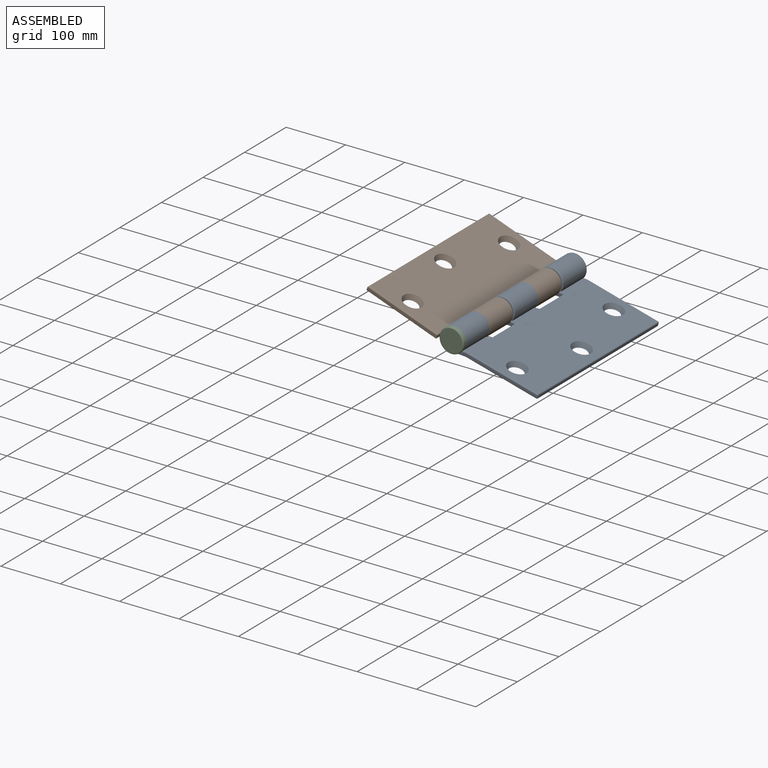
[diagram: assembled view]
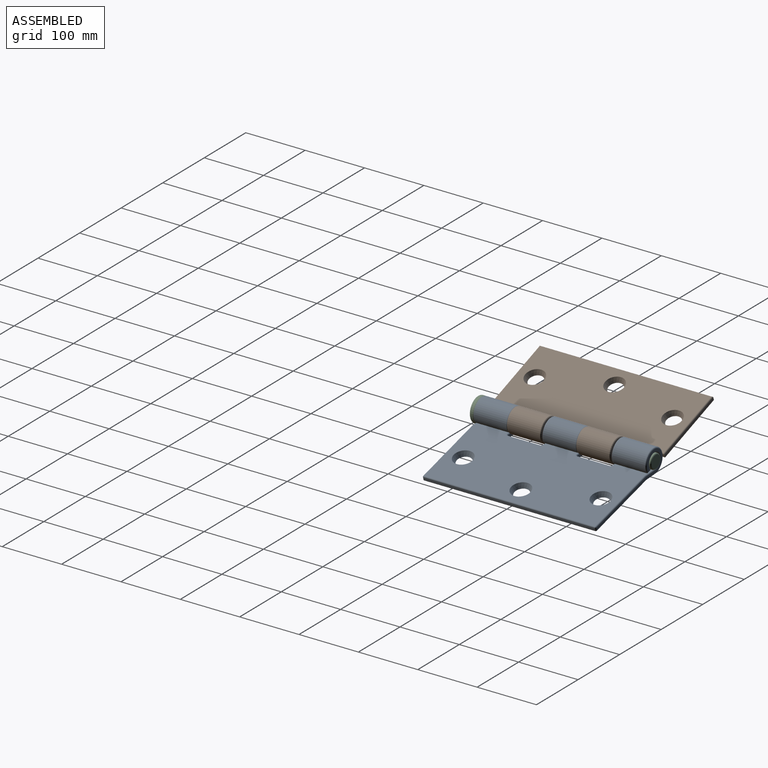
[diagram: assembled view, second angle]
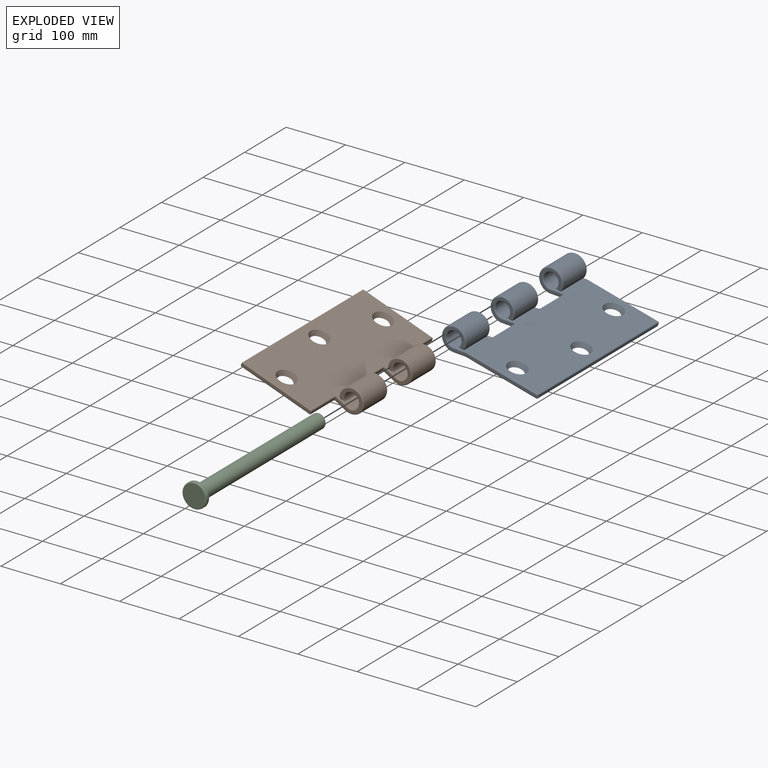
[diagram: exploded view]
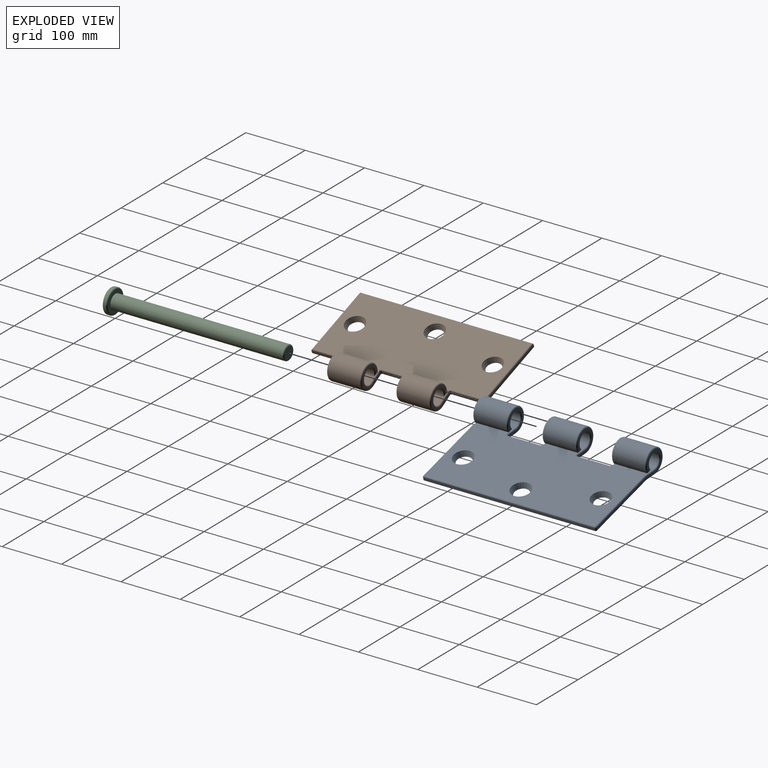
[diagram: exploded view, second angle]
ASSEMBLY  parts=3 mates=2
PART A: 95 faces, bbox 171.7x292x44.4 mm
  f0: plane 55.07x20.47mm, normal (0.2,0,-0.98), area 1136.3mm2, adj f2,f12,f46,f49,f55,f60
  f1: plane 54.74x20.47mm, normal (0.2,0,-0.98), area 1136.1mm2, adj f3,f12,f68,f71,f80
  f2: cylinder r=20.5mm len=54.4mm, axis (0,1,0), area 5922.8mm2, adj f0,f4,f42,f53
  f3: cylinder r=20.5mm len=54.4mm, axis (0,1,0), area 5922.8mm2, adj f1,f5,f64,f81
  f4: plane 54.4x9.27mm, normal (0,0,-1), area 504.3mm2, adj f2,f6,f37,f51
  f5: plane 54.4x9.27mm, normal (0,0,-1), area 504.3mm2, adj f3,f7,f59,f86
  f6: cylinder r=12.5mm len=54.4mm, axis (0,1,0), area 3806.4mm2, adj f4,f8,f36,f52
  f7: cylinder r=12.5mm len=54.4mm, axis (0,1,0), area 3806.4mm2, adj f5,f9,f58,f89
  f8: plane 55.89x22.13mm, normal (-0.19,0,0.98), area 1227.3mm2, adj f6,f10,f41,f44,f45,f54,f56,f57
  f9: plane 55.14x22.13mm, normal (-0.19,0,0.98), area 1226.7mm2, adj f7,f10,f63,f66,f67,f92
  f10: plane 288x123mm, normal (0,0,1), area 32774mm2, adj f8,f9,f17,f20,f21,f22,f35,f40
  f11: plane 288x4mm, normal (1,0,0), area 1152mm2, adj f83,f84,f90,f91
  f12: plane 288x123.04mm, normal (0,0,-1), area 33829.6mm2, adj f0,f1,f13,f20,f21,f22,f38,f43
  f13: plane 54.74x20.47mm, normal (0.2,0,-0.98), area 1136.1mm2, adj f12,f14,f33,f38,f75
  f14: cylinder r=20.5mm len=54.4mm, axis (0,1,0), area 5922.8mm2, adj f13,f15,f31,f73
  f15: plane 54.4x9.27mm, normal (0,0,-1), area 504.3mm2, adj f14,f16,f29,f74
  f16: cylinder r=12.5mm len=54.4mm, axis (0,1,0), area 3806.4mm2, adj f15,f17,f30,f76
  f17: plane 55.14x22.13mm, normal (-0.19,0,0.98), area 1226.7mm2, adj f10,f16,f32,f34,f35,f78
  f18: plane 166x37mm, normal (0,-1,0), area 925.7mm2, adj f80,f81,f85,f86,f89,f91,f92,f94
  f19: plane 166x37mm, normal (0,1,0), area 925.7mm2, adj f73,f74,f75,f76,f77,f78,f82,f83
  f20: cone r=12mm half-angle=26.6deg, axis (0,0,1), area 786.8mm2, adj f10,f12
  f21: cone r=12mm half-angle=26.6deg, axis (0,0,1), area 786.8mm2, adj f10,f12
  f22: cone r=12mm half-angle=26.6deg, axis (0,0,1), area 786.8mm2, adj f10,f12
  f23: plane 41x37mm, normal (0,1,0), area 425.8mm2, adj f58,f59,f63,f64,f68,f70
  f24: plane 54.4x4mm, normal (-1,0,0), area 217.6mm2, adj f61,f62,f69,f70
  f25: plane 41x37mm, normal (0,-1,0), area 425.8mm2, adj f51,f52,f53,f54,f55,f61
  f26: plane 41x37mm, normal (0,1,0), area 425.8mm2, adj f36,f37,f41,f42,f46,f48
  f27: plane 54.4x4mm, normal (-1,0,0), area 217.6mm2, adj f39,f40,f47,f48
  f28: plane 41x37mm, normal (0,-1,0), area 425.8mm2, adj f29,f30,f31,f32,f33,f39
  f29: cylinder r=2mm len=9.27mm, axis (-1,0,0), area 21.3mm2, adj f15,f28,f30,f31
  f30: torus R=14.5mm, axis (0,1,0), area 226.9mm2, adj f16,f28,f29,f32
  f31: torus R=18.5mm, axis (0,1,0), area 327.8mm2, adj f14,f28,f29,f33
  f32: cylinder r=2mm len=20.13mm, axis (0.98,0,0.19), area 63.2mm2, adj f17,f28,f30,f34
  f33: cylinder r=2mm len=19.26mm, axis (-0.98,0,-0.2), area 60.4mm2, adj f13,f28,f31,f38
  f34: bspline ~3.27x2.6mm, area 5.3mm2, adj f17,f32,f35,f39
  f35: torus R=4mm, axis (0,0,-1), area 8.8mm2, adj f10,f17,f34,f39,f40
  f36: torus R=14.5mm, axis (0,1,0), area 226.9mm2, adj f6,f26,f37,f41
  f37: cylinder r=2mm len=9.27mm, axis (1,0,0), area 21.3mm2, adj f4,f26,f36,f42
  f38: bspline ~2.89x2.53mm, area 3.8mm2, adj f12,f13,f33,f39,f43
  f39: cylinder r=2mm len=4.36mm, axis (0,0,-1), area 12.5mm2, adj f27,f28,f34,f35,f38,f43
  f40: cylinder r=2mm len=54.4mm, axis (0,1,0), area 170.9mm2, adj f10,f27,f35,f44
  f41: cylinder r=2mm len=20.13mm, axis (-0.98,0,-0.19), area 63.2mm2, adj f8,f26,f36,f45
  f42: torus R=18.5mm, axis (0,1,0), area 327.8mm2, adj f2,f26,f37,f46
  f43: torus R=4mm, axis (0,0,-1), area 9.1mm2, adj f12,f38,f39,f47
  f44: torus R=4mm, axis (0,0,-1), area 8.8mm2, adj f8,f10,f40,f45,f48
  f45: bspline ~2.41x2.38mm, area 5.3mm2, adj f8,f41,f44,f48
  f46: cylinder r=2mm len=19.26mm, axis (0.98,0,0.2), area 60.4mm2, adj f0,f26,f42,f49
  f47: cylinder r=2mm len=54.4mm, axis (0,-1,0), area 170.9mm2, adj f12,f27,f43,f50
  f48: cylinder r=2mm len=4.36mm, axis (0,0,1), area 12.5mm2, adj f26,f27,f44,f45,f49,f50
  f49: bspline ~2.89x2.53mm, area 3.8mm2, adj f0,f12,f46,f48,f50
  f50: torus R=4mm, axis (0,0,-1), area 9.1mm2, adj f12,f47,f48,f49
  f51: cylinder r=2mm len=9.27mm, axis (-1,0,0), area 21.3mm2, adj f4,f25,f52,f53
  f52: torus R=14.5mm, axis (0,1,0), area 226.9mm2, adj f6,f25,f51,f54
  f53: torus R=18.5mm, axis (0,1,0), area 327.8mm2, adj f2,f25,f51,f55
  f54: cylinder r=2mm len=20.13mm, axis (0.98,0,0.19), area 63.2mm2, adj f8,f25,f52,f56
  f55: cylinder r=2mm len=19.26mm, axis (-0.98,0,-0.2), area 60.4mm2, adj f0,f25,f53,f60
  f56: bspline ~2.41x2.38mm, area 5.3mm2, adj f8,f54,f57,f61
  f57: torus R=4mm, axis (0,0,-1), area 8.8mm2, adj f8,f10,f56,f61,f62
  f58: torus R=14.5mm, axis (0,1,0), area 226.9mm2, adj f7,f23,f59,f63
  f59: cylinder r=2mm len=9.27mm, axis (1,0,0), area 21.3mm2, adj f5,f23,f58,f64
  f60: bspline ~2.89x2.53mm, area 3.8mm2, adj f0,f12,f55,f61,f65
  f61: cylinder r=2mm len=4.36mm, axis (0,0,-1), area 12.5mm2, adj f24,f25,f56,f57,f60,f65
  f62: cylinder r=2mm len=54.4mm, axis (0,1,0), area 170.9mm2, adj f10,f24,f57,f66
  f63: cylinder r=2mm len=20.13mm, axis (-0.98,0,-0.19), area 63.2mm2, adj f9,f23,f58,f67
  f64: torus R=18.5mm, axis (0,1,0), area 327.8mm2, adj f3,f23,f59,f68
  f65: torus R=4mm, axis (0,0,-1), area 9.1mm2, adj f12,f60,f61,f69
  f66: torus R=4mm, axis (0,0,-1), area 8.8mm2, adj f9,f10,f62,f67,f70
  f67: bspline ~2.41x2.38mm, area 5.3mm2, adj f9,f63,f66,f70
  f68: cylinder r=2mm len=19.26mm, axis (0.98,0,0.2), area 60.4mm2, adj f1,f23,f64,f71
  f69: cylinder r=2mm len=54.4mm, axis (0,-1,0), area 170.9mm2, adj f12,f24,f65,f72
  f70: cylinder r=2mm len=4.36mm, axis (0,0,1), area 12.5mm2, adj f23,f24,f66,f67,f71,f72
  f71: bspline ~2.89x2.53mm, area 3.8mm2, adj f1,f12,f68,f70,f72
  f72: torus R=4mm, axis (0,0,-1), area 9.1mm2, adj f12,f69,f70,f71
  f73: torus R=18.5mm, axis (0,-1,0), area 327.8mm2, adj f14,f19,f74,f75
  f74: cylinder r=2mm len=9.27mm, axis (-1,0,0), area 21.3mm2, adj f15,f19,f73,f76
  f75: cylinder r=2mm len=21.06mm, axis (-0.98,0,-0.2), area 65.9mm2, adj f13,f19,f73,f77
  f76: torus R=14.5mm, axis (0,-1,0), area 226.9mm2, adj f16,f19,f74,f78
  f77: cylinder r=2mm len=123.2mm, axis (-1,0,0), area 386.7mm2, adj f12,f19,f75,f79
  f78: cylinder r=2mm len=22.51mm, axis (0.98,0,0.19), area 70.5mm2, adj f17,f19,f76,f82
  f79: sphere r=2mm, area 4mm2, adj f77,f83,f84
  f80: cylinder r=2mm len=21.06mm, axis (0.98,0,0.2), area 65.9mm2, adj f1,f18,f81,f85
  f81: torus R=18.5mm, axis (0,-1,0), area 327.8mm2, adj f3,f18,f80,f86
  f82: cylinder r=2mm len=123mm, axis (1,0,0), area 386.1mm2, adj f10,f19,f78,f87
  f83: cylinder r=2mm len=4mm, axis (0,0,-1), area 12.6mm2, adj f11,f19,f79,f87
  f84: cylinder r=2mm len=288mm, axis (0,-1,0), area 904.8mm2, adj f11,f12,f79,f88
  f85: cylinder r=2mm len=123.2mm, axis (1,0,0), area 386.7mm2, adj f12,f18,f80,f88
  f86: cylinder r=2mm len=9.27mm, axis (1,0,0), area 21.3mm2, adj f5,f18,f81,f89
  f87: sphere r=2mm, area 6.3mm2, adj f82,f83,f90
  f88: sphere r=2mm, area 6.3mm2, adj f84,f85,f91
  f89: torus R=14.5mm, axis (0,-1,0), area 226.9mm2, adj f7,f18,f86,f92
  f90: cylinder r=2mm len=288mm, axis (0,1,0), area 904.8mm2, adj f10,f11,f87,f93
  f91: cylinder r=2mm len=4mm, axis (0,0,1), area 12.6mm2, adj f11,f18,f88,f93
  f92: cylinder r=2mm len=22.51mm, axis (-0.98,0,-0.19), area 70.5mm2, adj f9,f18,f89,f94
  f93: sphere r=2mm, area 6.3mm2, adj f90,f91,f94
  f94: cylinder r=2mm len=123mm, axis (-1,0,0), area 386.1mm2, adj f10,f18,f92,f93
PART B: 77 faces, bbox 171.7x292x44.4 mm
  f0: plane 55.07x20.47mm, normal (-0.2,0,-0.98), area 1136.3mm2, adj f2,f14,f55,f56,f66,f68
  f1: plane 55.07x20.47mm, normal (-0.2,0,-0.98), area 1136.3mm2, adj f3,f14,f38,f40,f75,f76
  f2: cylinder r=20.5mm len=54.4mm, axis (0,1,0), area 5922.8mm2, adj f0,f4,f53,f64
  f3: cylinder r=20.5mm len=54.4mm, axis (0,1,0), area 5922.8mm2, adj f1,f5,f36,f73
  f4: plane 54.4x9.27mm, normal (0,0,-1), area 504.3mm2, adj f2,f6,f51,f62
  f5: plane 54.4x9.27mm, normal (0,0,-1), area 504.3mm2, adj f3,f7,f34,f71
  f6: cylinder r=12.5mm len=54.4mm, axis (0,1,0), area 3806.4mm2, adj f4,f8,f49,f60
  f7: cylinder r=12.5mm len=54.4mm, axis (0,1,0), area 3806.4mm2, adj f5,f9,f32,f69
  f8: plane 55.89x22.13mm, normal (0.19,0,0.98), area 1227.3mm2, adj f6,f12,f43,f45,f47,f57,f58,f59
  f9: plane 55.89x22.13mm, normal (0.19,0,0.98), area 1227.3mm2, adj f7,f12,f29,f30,f31,f63,f65,f67
  f10: plane 125x4mm, normal (0,-1,0), area 500mm2, adj f13,f19,f35,f46
  f11: plane 125x4mm, normal (0,1,0), area 500mm2, adj f13,f24,f39,f50
  f12: plane 288x123mm, normal (0,0,1), area 32665.2mm2, adj f8,f9,f15,f16,f17,f31,f33,f35
  f13: plane 292x4mm, normal (-1,0,0), area 1168mm2, adj f10,f11,f37,f48
  f14: plane 288x123.04mm, normal (0,0,-1), area 33720.8mm2, adj f0,f1,f15,f16,f17,f40,f42,f44
  f15: cone r=12mm half-angle=26.6deg, axis (0,0,1), area 786.8mm2, adj f12,f14
  f16: cone r=12mm half-angle=26.6deg, axis (0,0,1), area 786.8mm2, adj f12,f14
  f17: cone r=12mm half-angle=26.6deg, axis (0,0,1), area 786.8mm2, adj f12,f14
  f18: plane 41x37mm, normal (0,-1,0), area 425.8mm2, adj f25,f30,f32,f34,f36,f38
  f19: plane 56.4x4mm, normal (1,0,0), area 225.6mm2, adj f10,f25,f33,f44
  f20: plane 41x37mm, normal (0,-1,0), area 425.8mm2, adj f26,f58,f60,f62,f64,f66
  f21: plane 54.4x4mm, normal (1,0,0), area 217.6mm2, adj f26,f27,f61,f72
  f22: plane 41x37mm, normal (0,1,0), area 425.8mm2, adj f27,f67,f69,f71,f73,f75
  f23: plane 41x37mm, normal (0,1,0), area 425.8mm2, adj f28,f47,f49,f51,f53,f55
  f24: plane 56.4x4mm, normal (1,0,0), area 225.6mm2, adj f11,f28,f41,f52
  f25: cylinder r=2mm len=4.36mm, axis (0,0,-1), area 12.5mm2, adj f18,f19,f29,f31,f40,f42
  f26: cylinder r=2mm len=4.36mm, axis (0,0,-1), area 12.5mm2, adj f20,f21,f57,f59,f68,f70
  f27: cylinder r=2mm len=4.36mm, axis (0,0,1), area 12.5mm2, adj f21,f22,f63,f65,f74,f76
  f28: cylinder r=2mm len=4.36mm, axis (0,0,1), area 12.5mm2, adj f23,f24,f43,f45,f54,f56
  f29: bspline ~3.27x2.6mm, area 5.3mm2, adj f9,f25,f30,f31
  f30: cylinder r=2mm len=20.13mm, axis (0.98,0,-0.19), area 63.2mm2, adj f9,f18,f29,f32
  f31: torus R=4mm, axis (0,0,-1), area 8.8mm2, adj f9,f12,f25,f29,f33
  f32: torus R=14.5mm, axis (0,-1,0), area 226.9mm2, adj f7,f18,f30,f34
  f33: cylinder r=2mm len=56.4mm, axis (0,-1,0), area 174mm2, adj f12,f19,f31,f35
  f34: cylinder r=2mm len=9.27mm, axis (-1,0,0), area 21.3mm2, adj f5,f18,f32,f36
  f35: cylinder r=2mm len=125mm, axis (1,0,0), area 386.4mm2, adj f10,f12,f33,f37
  f36: torus R=18.5mm, axis (0,-1,0), area 327.8mm2, adj f3,f18,f34,f38
  f37: cylinder r=2mm len=292mm, axis (0,1,0), area 911.1mm2, adj f12,f13,f35,f39
  f38: cylinder r=2mm len=19.26mm, axis (-0.98,0,0.2), area 60.4mm2, adj f1,f18,f36,f40
  f39: cylinder r=2mm len=125mm, axis (-1,0,0), area 386.4mm2, adj f11,f12,f37,f41
  f40: bspline ~2.89x2.53mm, area 3.8mm2, adj f1,f14,f25,f38,f42
  f41: cylinder r=2mm len=56.4mm, axis (0,-1,0), area 174mm2, adj f12,f24,f39,f43
  f42: torus R=4mm, axis (0,0,-1), area 9.1mm2, adj f14,f25,f40,f44
  f43: torus R=4mm, axis (0,0,-1), area 8.8mm2, adj f8,f12,f28,f41,f45
  f44: cylinder r=2mm len=56.4mm, axis (0,1,0), area 174mm2, adj f14,f19,f42,f46
  f45: bspline ~2.41x2.38mm, area 5.3mm2, adj f8,f28,f43,f47
  f46: cylinder r=2mm len=125mm, axis (-1,0,0), area 386.4mm2, adj f10,f14,f44,f48
  f47: cylinder r=2mm len=20.13mm, axis (-0.98,0,0.19), area 63.2mm2, adj f8,f23,f45,f49
  f48: cylinder r=2mm len=292mm, axis (0,-1,0), area 911.1mm2, adj f13,f14,f46,f50
  f49: torus R=14.5mm, axis (0,-1,0), area 226.9mm2, adj f6,f23,f47,f51
  f50: cylinder r=2mm len=125mm, axis (1,0,0), area 386.4mm2, adj f11,f14,f48,f52
  f51: cylinder r=2mm len=9.27mm, axis (1,0,0), area 21.3mm2, adj f4,f23,f49,f53
  f52: cylinder r=2mm len=56.4mm, axis (0,1,0), area 174mm2, adj f14,f24,f50,f54
  f53: torus R=18.5mm, axis (0,-1,0), area 327.8mm2, adj f2,f23,f51,f55
  f54: torus R=4mm, axis (0,0,-1), area 9.1mm2, adj f14,f28,f52,f56
  f55: cylinder r=2mm len=19.26mm, axis (0.98,0,-0.2), area 60.4mm2, adj f0,f23,f53,f56
  f56: bspline ~2.89x2.53mm, area 3.8mm2, adj f0,f14,f28,f54,f55
  f57: bspline ~2.41x2.38mm, area 5.3mm2, adj f8,f26,f58,f59
  f58: cylinder r=2mm len=20.13mm, axis (0.98,0,-0.19), area 63.2mm2, adj f8,f20,f57,f60
  f59: torus R=4mm, axis (0,0,-1), area 8.8mm2, adj f8,f12,f26,f57,f61
  f60: torus R=14.5mm, axis (0,-1,0), area 226.9mm2, adj f6,f20,f58,f62
  f61: cylinder r=2mm len=54.4mm, axis (0,-1,0), area 170.9mm2, adj f12,f21,f59,f63
  f62: cylinder r=2mm len=9.27mm, axis (-1,0,0), area 21.3mm2, adj f4,f20,f60,f64
  f63: torus R=4mm, axis (0,0,-1), area 8.8mm2, adj f9,f12,f27,f61,f65
  f64: torus R=18.5mm, axis (0,-1,0), area 327.8mm2, adj f2,f20,f62,f66
  f65: bspline ~2.41x2.38mm, area 5.3mm2, adj f9,f27,f63,f67
  f66: cylinder r=2mm len=19.26mm, axis (-0.98,0,0.2), area 60.4mm2, adj f0,f20,f64,f68
  f67: cylinder r=2mm len=20.13mm, axis (-0.98,0,0.19), area 63.2mm2, adj f9,f22,f65,f69
  f68: bspline ~2.89x2.53mm, area 3.8mm2, adj f0,f14,f26,f66,f70
  f69: torus R=14.5mm, axis (0,-1,0), area 226.9mm2, adj f7,f22,f67,f71
  f70: torus R=4mm, axis (0,0,-1), area 9.1mm2, adj f14,f26,f68,f72
  f71: cylinder r=2mm len=9.27mm, axis (1,0,0), area 21.3mm2, adj f5,f22,f69,f73
  f72: cylinder r=2mm len=54.4mm, axis (0,1,0), area 170.9mm2, adj f14,f21,f70,f74
  f73: torus R=18.5mm, axis (0,-1,0), area 327.8mm2, adj f3,f22,f71,f75
  f74: torus R=4mm, axis (0,0,-1), area 9.1mm2, adj f14,f27,f72,f76
  f75: cylinder r=2mm len=19.26mm, axis (0.98,0,-0.2), area 60.4mm2, adj f1,f22,f73,f76
  f76: bspline ~2.89x2.53mm, area 3.8mm2, adj f1,f14,f27,f74,f75
PART C: 8 faces, bbox 44.4x300x44.4 mm
  f0: cylinder r=12.25mm len=290mm, axis (0,-1,0), area 22321mm2, adj f4,f7
  f1: plane 20.5x20.5mm, normal (0,1,0), area 330.1mm2, adj f7
  f2: cylinder r=20.5mm len=41mm, axis (0,1,0), area 515.2mm2, adj f5,f6
  f3: plane 37x37mm, normal (0,-1,0), area 1075.2mm2, adj f6
  f4: plane 37x37mm, normal (0,1,0), area 603.8mm2, adj f0,f5
  f5: torus R=18.5mm, axis (0,-1,0), area 390.3mm2, adj f2,f4
  f6: torus R=18.5mm, axis (0,-1,0), area 390.3mm2, adj f2,f3
  f7: torus R=10.25mm, axis (0,-1,0), area 227.5mm2, adj f0,f1
PLACE A rot(axis=(0,1,0),15deg) t=(-64.93,251.61,48.72)mm
PLACE B rot(axis=(0,1,0),20deg) t=(-64.96,249.61,50.97)mm
PLACE C t=(-63.7,253.61,42.11)mm
MATE revolute B.f2 <-> A.f2  axis (0,-1,0) through (-39.2,132.81,50.11)mm
MATE revolute C.f0 <-> A.f30  axis (0,-1,0) through (-39.2,251.61,50.11)mm
